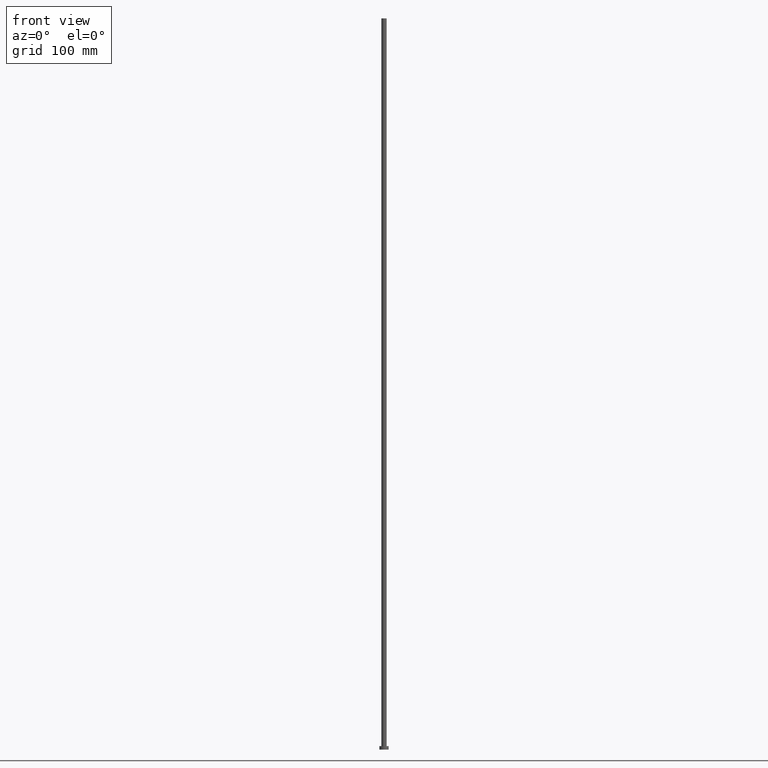
[diagram: clean part render]
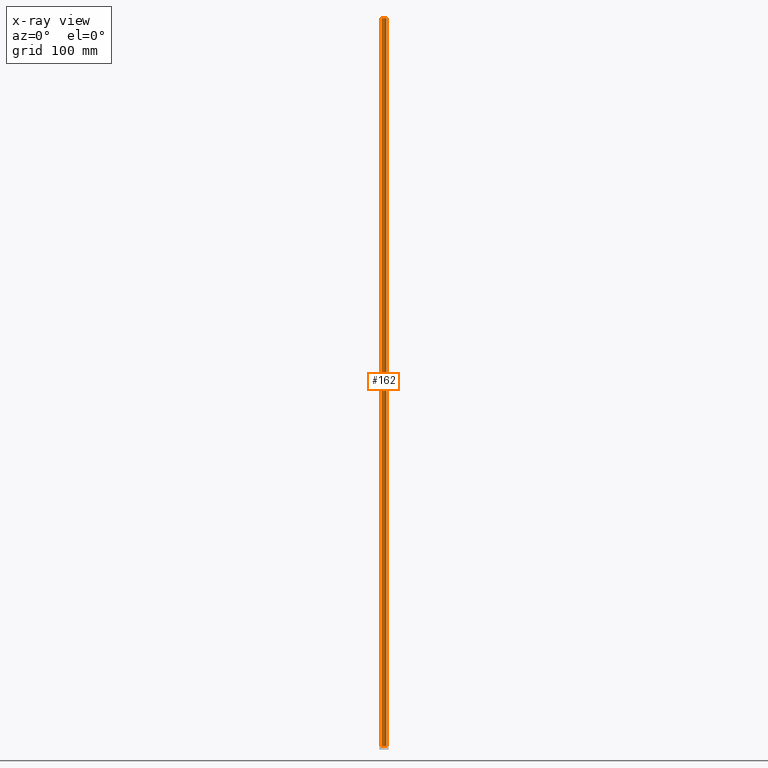
[diagram: x-ray — body ghosted, one internal face saturated and labeled with its STEP entity id]
A machine part, front view, then the same camera in x-ray: the body is ghosted and one INTERNAL B-rep face — a face not visible from any outside direction — is saturated and labeled: STEP entity #162.
In plain terms, the highlighted cylindrical surface (edge-blend (fillet) strip) has radius 2.25 mm, axis along (-0, -0, -1).
Its self-contained STEP definition (entity closure, byte-faithful):
#4 = CARTESIAN_POINT ( 'NONE',  ( -2.250000000000000000, 0.000000000000000000, 630.0000000000000000 ) ) ;
#6 = DIRECTION ( 'NONE',  ( -0.000000000000000000, -0.000000000000000000, -1.000000000000000000 ) ) ;
#14 = VERTEX_POINT ( 'NONE', #50 ) ;
#26 = DIRECTION ( 'NONE',  ( 1.000000000000000000, 0.000000000000000000, 0.000000000000000000 ) ) ;
#28 = CARTESIAN_POINT ( 'NONE',  ( 2.250000000000000000, 2.755455298081544285E-16, 630.0000000000000000 ) ) ;
#29 = FACE_OUTER_BOUND ( 'NONE', #192, .T. ) ;
#37 = DIRECTION ( 'NONE',  ( 0.000000000000000000, 0.000000000000000000, 1.000000000000000000 ) ) ;
#44 = LINE ( 'NONE', #28, #155 ) ;
#50 = CARTESIAN_POINT ( 'NONE',  ( 2.250000000000000000, 2.755455298081544285E-16, 630.0000000000000000 ) ) ;
#68 = EDGE_CURVE ( 'NONE', #128, #99, #146, .T. ) ;
#75 = AXIS2_PLACEMENT_3D ( 'NONE', #158, #6, #204 ) ;
#76 = ORIENTED_EDGE ( 'NONE', *, *, #241, .F. ) ;
#78 = EDGE_CURVE ( 'NONE', #14, #128, #44, .T. ) ;
#99 = VERTEX_POINT ( 'NONE', #221 ) ;
#102 = CARTESIAN_POINT ( 'NONE',  ( 2.250000000000000000, 2.755455298081544285E-16, 3.000000000000000000 ) ) ;
#105 = DIRECTION ( 'NONE',  ( 1.000000000000000000, 0.000000000000000000, 0.000000000000000000 ) ) ;
#112 = CARTESIAN_POINT ( 'NONE',  ( 0.000000000000000000, 0.000000000000000000, 3.000000000000000000 ) ) ;
#120 = CARTESIAN_POINT ( 'NONE',  ( -2.250000000000000000, 0.000000000000000000, 630.0000000000000000 ) ) ;
#128 = VERTEX_POINT ( 'NONE', #102 ) ;
#140 = CYLINDRICAL_SURFACE ( 'NONE', #75, 2.250000000000000000 ) ;
#144 = DIRECTION ( 'NONE',  ( -0.000000000000000000, -0.000000000000000000, -1.000000000000000000 ) ) ;
#145 = DIRECTION ( 'NONE',  ( 0.000000000000000000, 0.000000000000000000, 1.000000000000000000 ) ) ;
#146 = CIRCLE ( 'NONE', #234, 2.250000000000000000 ) ;
#155 = VECTOR ( 'NONE', #144, 1000.000000000000000 ) ;
#158 = CARTESIAN_POINT ( 'NONE',  ( 0.000000000000000000, 0.000000000000000000, 630.0000000000000000 ) ) ;
#159 = DIRECTION ( 'NONE',  ( -0.000000000000000000, -0.000000000000000000, -1.000000000000000000 ) ) ;
#162 = ADVANCED_FACE ( 'NONE', ( #29 ), #140, .T. ) ;
#170 = VERTEX_POINT ( 'NONE', #4 ) ;
#172 = ORIENTED_EDGE ( 'NONE', *, *, #193, .F. ) ;
#190 = AXIS2_PLACEMENT_3D ( 'NONE', #242, #145, #26 ) ;
#192 = EDGE_LOOP ( 'NONE', ( #172, #218, #206, #76 ) ) ;
#193 = EDGE_CURVE ( 'NONE', #14, #170, #202, .T. ) ;
#201 = LINE ( 'NONE', #120, #220 ) ;
#202 = CIRCLE ( 'NONE', #190, 2.250000000000000000 ) ;
#204 = DIRECTION ( 'NONE',  ( -1.000000000000000000, 0.000000000000000000, 0.000000000000000000 ) ) ;
#206 = ORIENTED_EDGE ( 'NONE', *, *, #68, .T. ) ;
#218 = ORIENTED_EDGE ( 'NONE', *, *, #78, .T. ) ;
#220 = VECTOR ( 'NONE', #159, 1000.000000000000000 ) ;
#221 = CARTESIAN_POINT ( 'NONE',  ( -2.250000000000000000, 0.000000000000000000, 3.000000000000000000 ) ) ;
#234 = AXIS2_PLACEMENT_3D ( 'NONE', #112, #37, #105 ) ;
#241 = EDGE_CURVE ( 'NONE', #170, #99, #201, .T. ) ;
#242 = CARTESIAN_POINT ( 'NONE',  ( 0.000000000000000000, 0.000000000000000000, 630.0000000000000000 ) ) ;